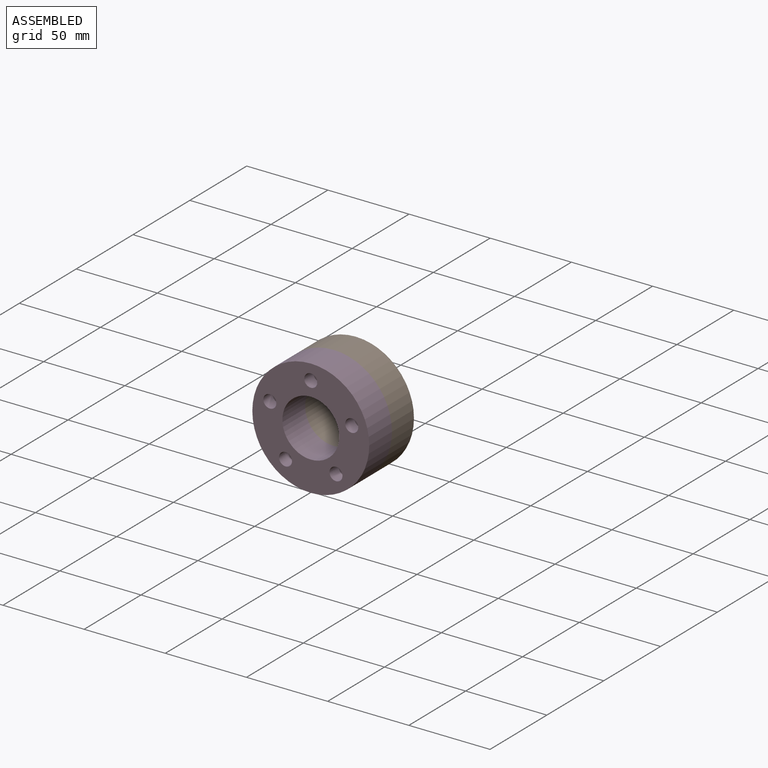
[diagram: assembled view]
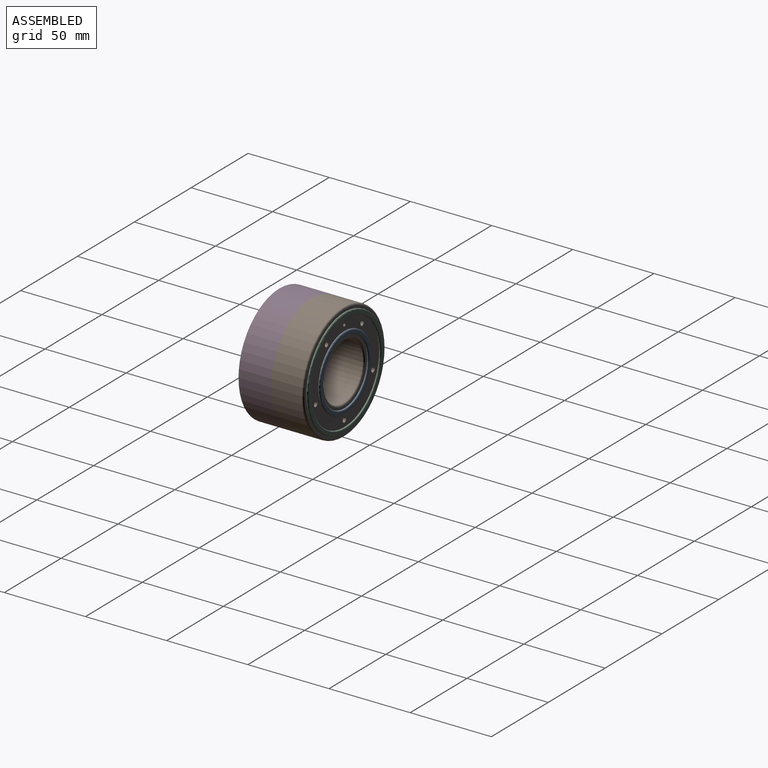
[diagram: assembled view, second angle]
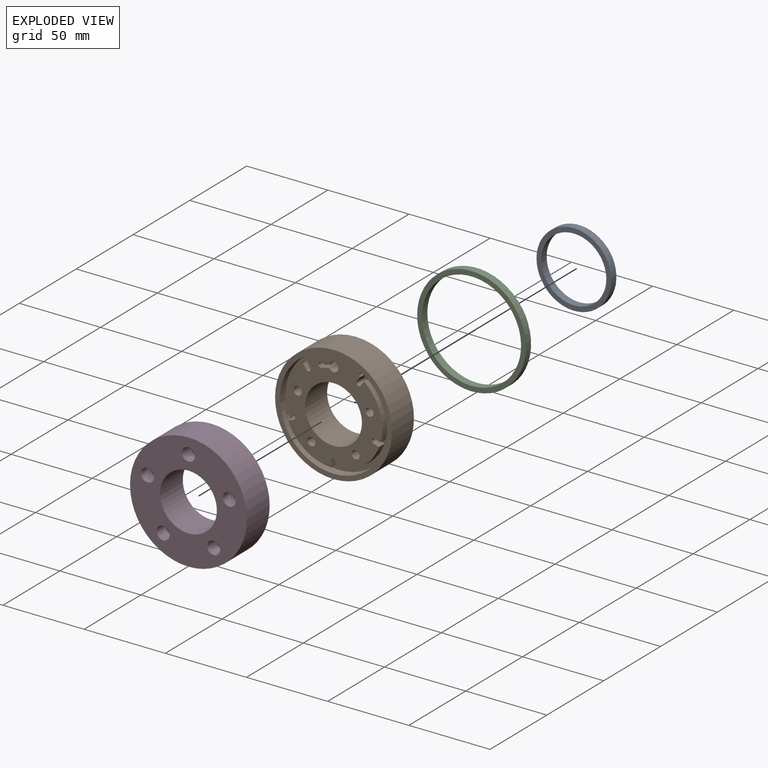
[diagram: exploded view]
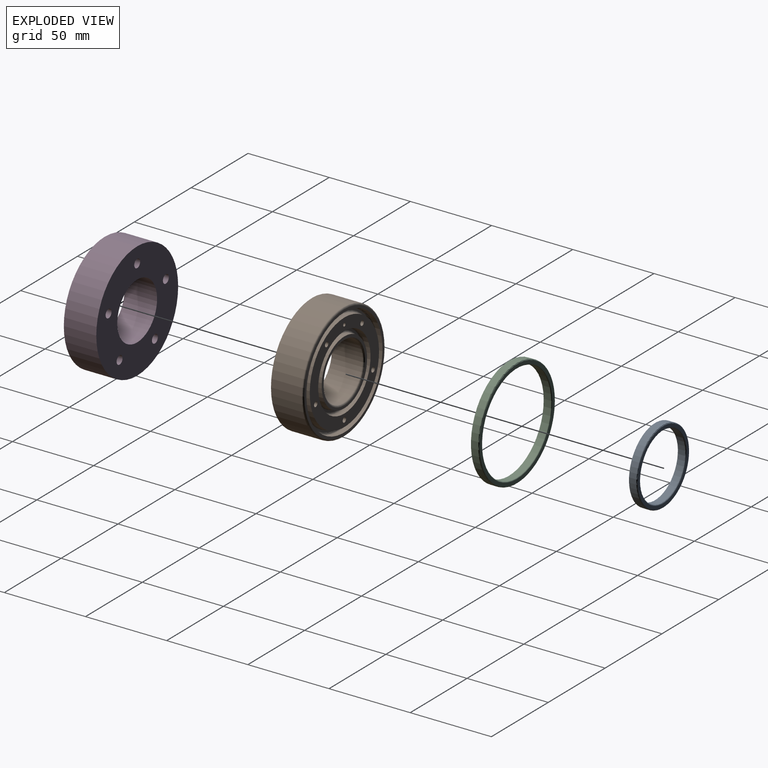
[diagram: exploded view, second angle]
ASSEMBLY  parts=4 mates=7
PART A: 6 faces, bbox 49.8x49.8x5 mm
  f0: cylinder r=20mm len=40mm, axis (0,0,-1), area 565.5mm2, adj f3,f4
  f1: cylinder r=23mm len=46mm, axis (0,0,-1), area 650.3mm2, adj f3,f5
  f2: plane 45x45mm, normal (0,0,1), area 270.2mm2, adj f4,f5
  f3: plane 46x46mm, normal (0,0,-1), area 405.3mm2, adj f0,f1
  f4: torus R=20.5mm, axis (0,0,1), area 99.6mm2, adj f0,f2
  f5: torus R=22.5mm, axis (0,0,1), area 112.6mm2, adj f1,f2
PART B: 98 faces, bbox 77.9x20x77.9 mm
  f0: plane 72x72mm, normal (0,1,0), area 2423.1mm2, adj f1,f29,f30,f31,f32,f66,f67,f68
  f1: cylinder r=28.06mm len=5.72mm, axis (0,1,0), area 21.6mm2, adj f0,f2,f29,f31
  f2: torus R=27.76mm, axis (0,1,0), area 2.6mm2, adj f1,f3,f27,f28
  f3: cylinder r=1.5mm len=12.66mm, axis (0,1,0), area 49.9mm2, adj f2,f4,f5,f24,f25,f26,f28,f31
  f4: torus R=25.5mm, axis (0,1,0), area 2.3mm2, adj f3,f27,f28,f30
  f5: bspline ~3.01x2.14mm, area 0mm2, adj f3,f6,f23,f24
  f6: cone r=1mm half-angle=60deg, axis (0,1,0), area 19.5mm2, adj f5,f7,f23
  f7: cylinder r=1mm len=2.5mm, axis (0,-1,0), area 15.7mm2, adj f6,f8
  f8: plane 61x61mm, normal (0,-1,0), area 1222.1mm2, adj f7,f9,f16,f67,f71,f75,f79,f83
  f9: cylinder r=30.5mm len=61mm, axis (0,-1,0), area 574.9mm2, adj f8,f10
  f10: torus R=31.5mm, axis (0,-1,0), area 304.6mm2, adj f9,f11
  f11: plane 65x65mm, normal (0,-1,0), area 201.1mm2, adj f10,f12
  f12: torus R=32.5mm, axis (0,-1,0), area 327mm2, adj f11,f13
  f13: cylinder r=33.5mm len=67mm, axis (0,-1,0), area 631.5mm2, adj f12,f14
  f14: plane 70x70mm, normal (0,-1,0), area 322.8mm2, adj f13,f15
  f15: torus R=35mm, axis (0,-1,0), area 351.7mm2, adj f14,f87
  f16: cylinder r=23mm len=46mm, axis (0,-1,0), area 433.5mm2, adj f8,f17
  f17: torus R=22mm, axis (0,-1,0), area 223.4mm2, adj f16,f18
  f18: plane 44x44mm, normal (0,-1,0), area 135.1mm2, adj f17,f19
  f19: torus R=21mm, axis (0,-1,0), area 201mm2, adj f18,f20
  f20: cylinder r=20mm len=40mm, axis (0,-1,0), area 377mm2, adj f19,f21
  f21: plane 40x40mm, normal (0,-1,0), area 181.4mm2, adj f20,f22
  f22: torus R=18.5mm, axis (0,-1,0), area 176.3mm2, adj f21,f96
  f23: torus R=2.2mm, axis (0,-1,0), area 3.9mm2, adj f5,f6,f24
  f24: cylinder r=2.5mm len=5mm, axis (0,-1,0), area 43.3mm2, adj f3,f5,f23,f25
  f25: plane 5.4x4.95mm, normal (0,1,0), area 2.6mm2, adj f3,f24,f26
  f26: torus R=2.7mm, axis (0,-1,0), area 7.1mm2, adj f3,f25,f31
  f27: torus R=1.13mm, axis (0,1,0), area 2mm2, adj f2,f4,f28,f29
  f28: plane 5.94x3.27mm, normal (0,1,0), area 12.2mm2, adj f2,f3,f4,f27
  f29: cylinder r=1.43mm len=3.7mm, axis (0,1,0), area 16.6mm2, adj f0,f1,f27,f30
  f30: cylinder r=25.2mm len=4.87mm, axis (0,1,0), area 18.4mm2, adj f0,f4,f29,f31
  f31: cylinder r=3mm len=12.7mm, axis (0,-1,0), area 201.4mm2, adj f0,f1,f3,f26,f30
  f32: cylinder r=1.5mm len=4.7mm, axis (0,1,0), area 22.1mm2, adj f0,f33,f66,f86
  f33: torus R=1.2mm, axis (0,1,0), area 2.1mm2, adj f32,f34,f64,f65
  f34: cylinder r=0.3mm len=3.27mm, axis (-0.59,0,0.81), area 1.4mm2, adj f33,f35,f64,f66
  f35: bspline ~1.23x0.97mm, area 0.2mm2, adj f34,f36,f67
  f36: torus R=1.8mm, axis (0,1,0), area 1.1mm2, adj f35,f37,f64,f67
  f37: bspline ~1.41x0.6mm, area 0.2mm2, adj f36,f38,f67
  f38: cylinder r=0.3mm len=3.23mm, axis (0.59,0,-0.81), area 1.4mm2, adj f37,f39,f64,f68
  f39: torus R=30.3mm, axis (0,1,0), area 16.6mm2, adj f38,f40,f64,f69
  f40: cylinder r=0.3mm len=3.68mm, axis (-0.95,0,-0.31), area 1.4mm2, adj f39,f41,f64,f70
  f41: bspline ~1.28x0.98mm, area 0.2mm2, adj f40,f42,f71
  f42: torus R=1.8mm, axis (0,1,0), area 1.1mm2, adj f41,f43,f64,f71
  f43: bspline ~1.51x0.6mm, area 0.2mm2, adj f42,f44,f71
  f44: cylinder r=0.3mm len=3.68mm, axis (0.95,0,0.31), area 1.4mm2, adj f43,f45,f64,f72
  f45: torus R=30.3mm, axis (0,1,0), area 16.6mm2, adj f44,f46,f64,f73
  f46: cylinder r=0.3mm len=3.78mm, axis (0,0,-1), area 1.4mm2, adj f45,f47,f64,f74
  f47: bspline ~1.47x0.63mm, area 0.2mm2, adj f46,f48,f75
  f48: torus R=1.8mm, axis (0,1,0), area 1.1mm2, adj f47,f49,f64,f75
  f49: bspline ~1.47x0.63mm, area 0.2mm2, adj f48,f50,f75
  f50: cylinder r=0.3mm len=3.78mm, axis (0,0,1), area 1.4mm2, adj f49,f51,f64,f76
  f51: torus R=30.3mm, axis (0,1,0), area 16.6mm2, adj f50,f52,f64,f77
  f52: cylinder r=0.3mm len=3.68mm, axis (0.95,0,-0.31), area 1.4mm2, adj f51,f53,f64,f78
  f53: bspline ~1.51x0.6mm, area 0.2mm2, adj f52,f54,f79
  f54: torus R=1.8mm, axis (0,1,0), area 1.1mm2, adj f53,f55,f64,f79
  f55: bspline ~1.28x0.98mm, area 0.2mm2, adj f54,f56,f79
  f56: cylinder r=0.3mm len=3.68mm, axis (-0.95,0,0.31), area 1.4mm2, adj f55,f57,f64,f80
  f57: torus R=30.3mm, axis (0,1,0), area 16.6mm2, adj f56,f58,f64,f81
  f58: cylinder r=0.3mm len=3.23mm, axis (0.59,0,0.81), area 1.4mm2, adj f57,f59,f64,f82
  f59: bspline ~1.41x0.6mm, area 0.2mm2, adj f58,f60,f83
  f60: torus R=1.8mm, axis (0,1,0), area 1.1mm2, adj f59,f61,f64,f83
  f61: bspline ~1.23x0.97mm, area 0.2mm2, adj f60,f62,f83
  f62: cylinder r=0.3mm len=3.27mm, axis (-0.59,0,-0.81), area 1.4mm2, adj f61,f63,f64,f84
  f63: torus R=1.2mm, axis (0,1,0), area 2.1mm2, adj f62,f64,f65,f85
  f64: plane 65.4x60.28mm, normal (0,1,0), area 417.7mm2, adj f33,f34,f36,f38,f39,f40,f42,f44
  f65: torus R=32.7mm, axis (0,1,0), area 79.5mm2, adj f33,f63,f64,f86
  f66: plane 4.7x2.8mm, normal (0.81,0,0.59), area 16.3mm2, adj f0,f32,f34,f67
  f67: cylinder r=1.5mm len=20mm, axis (0,-1,0), area 164.3mm2, adj f0,f8,f35,f36,f37,f66,f68
  f68: plane 4.7x2.8mm, normal (-0.81,0,-0.59), area 16.3mm2, adj f0,f38,f67,f69
  f69: cylinder r=30mm len=31.19mm, axis (0,1,0), area 163.1mm2, adj f0,f39,f68,f70
  f70: plane 4.7x3.29mm, normal (-0.31,0,0.95), area 16.3mm2, adj f0,f40,f69,f71
  f71: cylinder r=1.5mm len=20mm, axis (0,-1,0), area 164.3mm2, adj f0,f8,f41,f42,f43,f70,f72
  f72: plane 4.7x3.29mm, normal (0.31,0,-0.95), area 16.3mm2, adj f0,f44,f71,f73
  f73: cylinder r=30mm len=26.53mm, axis (0,1,0), area 163.1mm2, adj f0,f45,f72,f74
  f74: plane 4.7x3.46mm, normal (-1,0,0), area 16.3mm2, adj f0,f46,f73,f75
  f75: cylinder r=1.5mm len=20mm, axis (0,-1,0), area 164.3mm2, adj f0,f8,f47,f48,f49,f74,f76
  f76: plane 4.7x3.46mm, normal (1,0,0), area 16.3mm2, adj f0,f50,f75,f77
  f77: cylinder r=30mm len=26.53mm, axis (0,1,0), area 163.1mm2, adj f0,f51,f76,f78
  f78: plane 4.7x3.29mm, normal (-0.31,0,-0.95), area 16.3mm2, adj f0,f52,f77,f79
  f79: cylinder r=1.5mm len=20mm, axis (0,-1,0), area 164.3mm2, adj f0,f8,f53,f54,f55,f78,f80
  f80: plane 4.7x3.29mm, normal (0.31,0,0.95), area 16.3mm2, adj f0,f56,f79,f81
  f81: cylinder r=30mm len=31.19mm, axis (0,1,0), area 163.1mm2, adj f0,f57,f80,f82
  f82: plane 4.7x2.8mm, normal (0.81,0,-0.59), area 16.3mm2, adj f0,f58,f81,f83
  f83: cylinder r=1.5mm len=20mm, axis (0,-1,0), area 164.3mm2, adj f0,f8,f59,f60,f61,f82,f84
  f84: plane 4.7x2.8mm, normal (-0.81,0,0.59), area 16.3mm2, adj f0,f62,f83,f85
  f85: cylinder r=1.5mm len=4.7mm, axis (0,1,0), area 22.1mm2, adj f0,f63,f84,f86
  f86: cylinder r=33mm len=66mm, axis (0,1,0), area 795.1mm2, adj f0,f32,f65,f85
  f87: cylinder r=36mm len=72mm, axis (0,1,0), area 4297.7mm2, adj f0,f15
  f88: cylinder r=2.5mm len=12mm, axis (0,1,0), area 188.5mm2, adj f0,f89
  f89: plane 5x5mm, normal (0,1,0), area 19.6mm2, adj f88
  f90: cylinder r=2.5mm len=12mm, axis (0,1,0), area 188.5mm2, adj f0,f91
  f91: plane 5x5mm, normal (0,1,0), area 19.6mm2, adj f90
  f92: cylinder r=2.5mm len=12mm, axis (0,1,0), area 188.5mm2, adj f0,f93
  f93: plane 5x5mm, normal (0,1,0), area 19.6mm2, adj f92
  f94: cylinder r=2.5mm len=12mm, axis (0,1,0), area 188.5mm2, adj f0,f95
  f95: plane 5x5mm, normal (0,1,0), area 19.6mm2, adj f94
  f96: cylinder r=17.5mm len=35mm, axis (0,1,0), area 2089.2mm2, adj f0,f22
  f97: cone r=1mm half-angle=60deg, axis (0,1,0), area 0mm2
PART C: 6 faces, bbox 72.5x72.5x5 mm
  f0: cylinder r=30.5mm len=61mm, axis (0,0,-1), area 862.4mm2, adj f3,f4
  f1: cylinder r=33.5mm len=67mm, axis (0,0,-1), area 947.2mm2, adj f3,f5
  f2: plane 66x66mm, normal (0,0,1), area 402.1mm2, adj f4,f5
  f3: plane 67x67mm, normal (0,0,-1), area 603.2mm2, adj f0,f1
  f4: torus R=31mm, axis (0,0,1), area 151.4mm2, adj f0,f2
  f5: torus R=33mm, axis (0,0,1), area 164.4mm2, adj f1,f2
PART D: 19 faces, bbox 72x20x72 mm
  f0: cylinder r=17.5mm len=35mm, axis (0,1,0), area 2199.1mm2, adj f2,f3
  f1: cylinder r=36mm len=72mm, axis (0,1,0), area 4523.9mm2, adj f2,f3
  f2: plane 72x72mm, normal (0,-1,0), area 2858.1mm2, adj f0,f1,f4,f7,f10,f13,f16
  f3: plane 72x72mm, normal (0,1,0), area 3003.2mm2, adj f0,f1,f5,f8,f11,f14,f18
  f4: cylinder r=4mm len=8mm, axis (0,-1,0), area 201.1mm2, adj f2,f6
  f5: cylinder r=2.6mm len=12mm, axis (0,-1,0), area 196mm2, adj f3,f6
  f6: plane 8x8mm, normal (0,-1,0), area 29mm2, adj f4,f5
  f7: cylinder r=4mm len=8mm, axis (0,-1,0), area 201.1mm2, adj f2,f9
  f8: cylinder r=2.6mm len=12mm, axis (0,-1,0), area 196mm2, adj f3,f9
  f9: plane 8x8mm, normal (0,-1,0), area 29mm2, adj f7,f8
  f10: cylinder r=4mm len=8mm, axis (0,-1,0), area 201.1mm2, adj f2,f12
  f11: cylinder r=2.6mm len=12mm, axis (0,-1,0), area 196mm2, adj f3,f12
  f12: plane 8x8mm, normal (0,-1,0), area 29mm2, adj f10,f11
  f13: cylinder r=4mm len=8mm, axis (0,-1,0), area 201.1mm2, adj f2,f15
  f14: cylinder r=2.6mm len=12mm, axis (0,-1,0), area 196mm2, adj f3,f15
  f15: plane 8x8mm, normal (0,-1,0), area 29mm2, adj f13,f14
  f16: cylinder r=4mm len=8mm, axis (0,-1,0), area 201.1mm2, adj f2,f17
  f17: plane 8x8mm, normal (0,-1,0), area 29mm2, adj f16,f18
  f18: cylinder r=2.6mm len=12mm, axis (0,-1,0), area 196mm2, adj f3,f17
PLACE A rot(axis=(-0.92,-0.27,-0.27),94.7deg) t=(-247.67,132.06,-44.29)mm
PLACE B rot(axis=(1,0,0),180deg) t=(-247.67,116.06,-44.29)mm
PLACE C rot(axis=(-0.92,-0.27,-0.27),94.7deg) t=(-247.67,132.06,-44.29)mm
PLACE D t=(-247.67,116.06,-44.29)mm
MATE planar B.f19 <-> A.f1  axis (0,1,0) through (-247.67,132.06,-44.29)mm
MATE cylindrical C.f1 <-> B.f15  axis (0,1,0) through (-247.67,136.56,-44.29)mm
MATE cylindrical B.f6 <-> D.f4  axis (0,1,0) through (-247.67,122.41,-17.79)mm
MATE planar B.f90 <-> D.f0  axis (0,-1,0) through (-225.56,116.06,-37.1)mm
MATE cylindrical A.f1 <-> B.f15  axis (0,-1,0) through (-247.67,134.31,-44.29)mm
MATE planar B.f9 <-> C.f0  axis (0,1,0) through (-247.67,132.06,-44.29)mm
MATE cylindrical B.f15 <-> D.f1  axis (0,-1,0) through (-247.67,125.56,-44.29)mm
